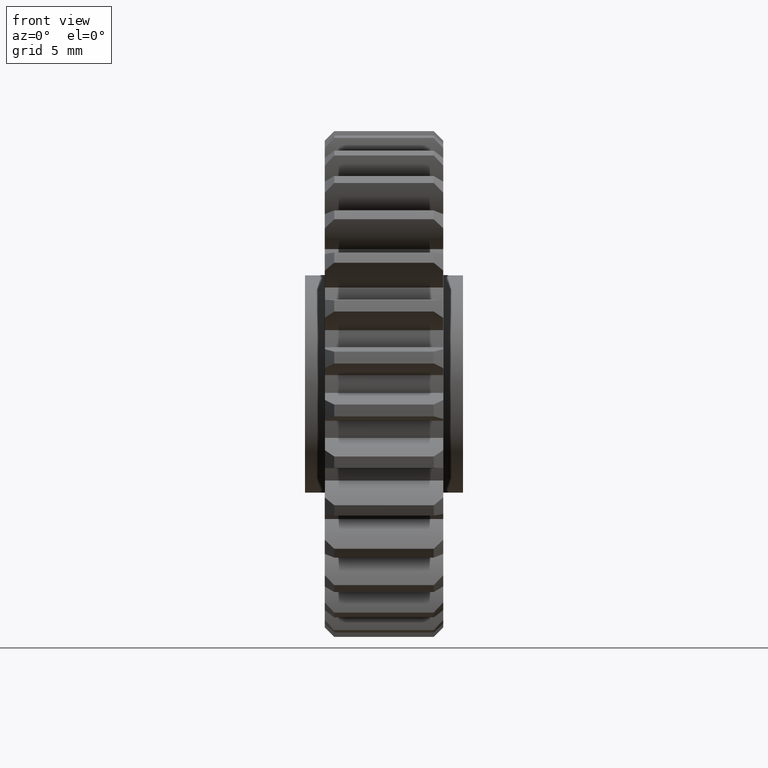
[diagram: clean part render]
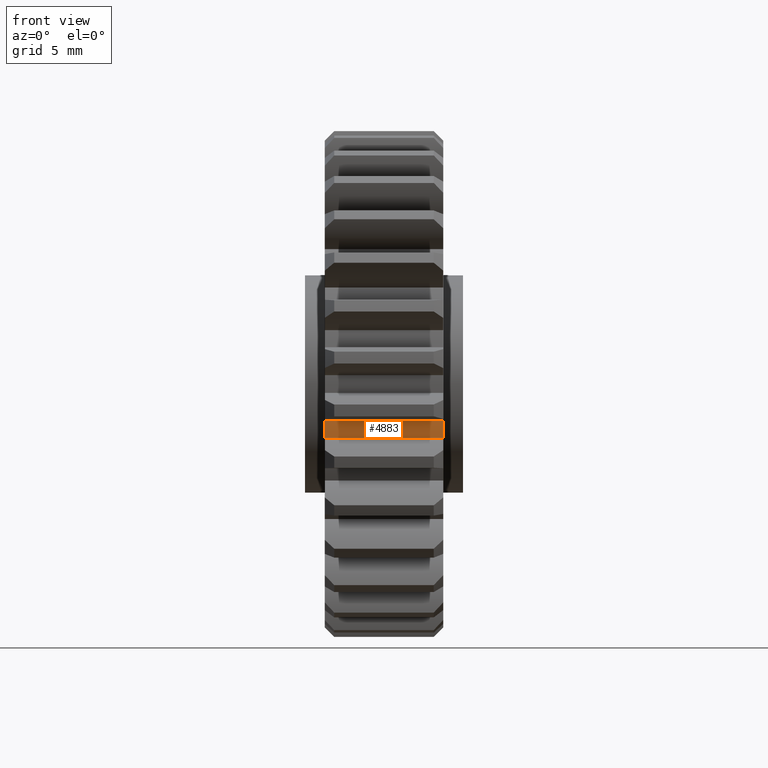
[diagram: same view with one face highlighted and labeled with its STEP entity id]
A machine part, front view. The second image highlights one B-rep face of the part: STEP entity #4883.
In plain terms, the highlighted cylindrical surface (partial cylindrical patch) has radius 17.4752 mm, axis along (-1, 0, 0).
Its self-contained STEP definition (entity closure, byte-faithful):
#82 = DIRECTION ( 'NONE',  ( -1.000000000000000000, 0.0000000000000000000, 0.0000000000000000000 ) ) ;
#275 = LINE ( 'NONE', #2490, #6031 ) ;
#362 = VECTOR ( 'NONE', #2991, 39.37007874015748143 ) ;
#462 = VERTEX_POINT ( 'NONE', #659 ) ;
#627 = FACE_OUTER_BOUND ( 'NONE', #7010, .T. ) ;
#659 = CARTESIAN_POINT ( 'NONE',  ( 0.0000000000000000000, -0.6782527753606805154, -0.1154000550932888364 ) ) ;
#793 = CARTESIAN_POINT ( 'NONE',  ( 0.3750000000000000555, -0.6665521730836413417, -0.1704470608648778751 ) ) ;
#879 = DIRECTION ( 'NONE',  ( -1.000000000000000000, 0.0000000000000000000, 0.0000000000000000000 ) ) ;
#1043 = EDGE_CURVE ( 'NONE', #6004, #5837, #5740, .T. ) ;
#1262 = AXIS2_PLACEMENT_3D ( 'NONE', #5828, #879, #3079 ) ;
#1571 = ORIENTED_EDGE ( 'NONE', *, *, #4641, .T. ) ;
#1736 = AXIS2_PLACEMENT_3D ( 'NONE', #2191, #4392, #6600 ) ;
#2191 = CARTESIAN_POINT ( 'NONE',  ( 0.0000000000000000000, 0.0000000000000000000, 0.0000000000000000000 ) ) ;
#2300 = DIRECTION ( 'NONE',  ( 0.0000000000000000000, 0.0000000000000000000, 1.000000000000000000 ) ) ;
#2490 = CARTESIAN_POINT ( 'NONE',  ( 0.3750000000000000555, -0.6782527753606805154, -0.1154000550932888086 ) ) ;
#2826 = CYLINDRICAL_SURFACE ( 'NONE', #5992, 0.6879999999999998339 ) ;
#2952 = EDGE_CURVE ( 'NONE', #462, #6168, #275, .T. ) ;
#2991 = DIRECTION ( 'NONE',  ( -1.000000000000000000, 0.0000000000000000000, 0.0000000000000000000 ) ) ;
#3079 = DIRECTION ( 'NONE',  ( 0.0000000000000000000, 0.0000000000000000000, 1.000000000000000000 ) ) ;
#3419 = ORIENTED_EDGE ( 'NONE', *, *, #4803, .T. ) ;
#4372 = CARTESIAN_POINT ( 'NONE',  ( 0.3750000000000000555, -0.6665521730836413417, -0.1704470608648778196 ) ) ;
#4380 = CIRCLE ( 'NONE', #1262, 0.6879999999999998339 ) ;
#4392 = DIRECTION ( 'NONE',  ( 1.000000000000000000, -0.0000000000000000000, -0.0000000000000000000 ) ) ;
#4619 = ORIENTED_EDGE ( 'NONE', *, *, #2952, .F. ) ;
#4641 = EDGE_CURVE ( 'NONE', #6004, #6168, #4380, .T. ) ;
#4681 = DIRECTION ( 'NONE',  ( 1.000000000000000000, -0.0000000000000000000, -0.0000000000000000000 ) ) ;
#4687 = CARTESIAN_POINT ( 'NONE',  ( 0.0000000000000000000, -0.6665521730836413417, -0.1704470608648778196 ) ) ;
#4803 = EDGE_CURVE ( 'NONE', #462, #5837, #4838, .T. ) ;
#4838 = CIRCLE ( 'NONE', #1736, 0.6879999999999998339 ) ;
#4883 = ADVANCED_FACE ( 'NONE', ( #627 ), #2826, .T. ) ;
#5037 = CARTESIAN_POINT ( 'NONE',  ( 0.3750000000000000555, 0.0000000000000000000, 0.0000000000000000000 ) ) ;
#5673 = CARTESIAN_POINT ( 'NONE',  ( 0.3750000000000000555, -0.6782527753606805154, -0.1154000550932888364 ) ) ;
#5740 = LINE ( 'NONE', #793, #362 ) ;
#5828 = CARTESIAN_POINT ( 'NONE',  ( 0.3750000000000000555, 0.0000000000000000000, 0.0000000000000000000 ) ) ;
#5837 = VERTEX_POINT ( 'NONE', #4687 ) ;
#5992 = AXIS2_PLACEMENT_3D ( 'NONE', #5037, #82, #2300 ) ;
#6004 = VERTEX_POINT ( 'NONE', #4372 ) ;
#6031 = VECTOR ( 'NONE', #4681, 39.37007874015748143 ) ;
#6084 = ORIENTED_EDGE ( 'NONE', *, *, #1043, .F. ) ;
#6168 = VERTEX_POINT ( 'NONE', #5673 ) ;
#6600 = DIRECTION ( 'NONE',  ( 0.0000000000000000000, 0.0000000000000000000, 1.000000000000000000 ) ) ;
#7010 = EDGE_LOOP ( 'NONE', ( #1571, #4619, #3419, #6084 ) ) ;